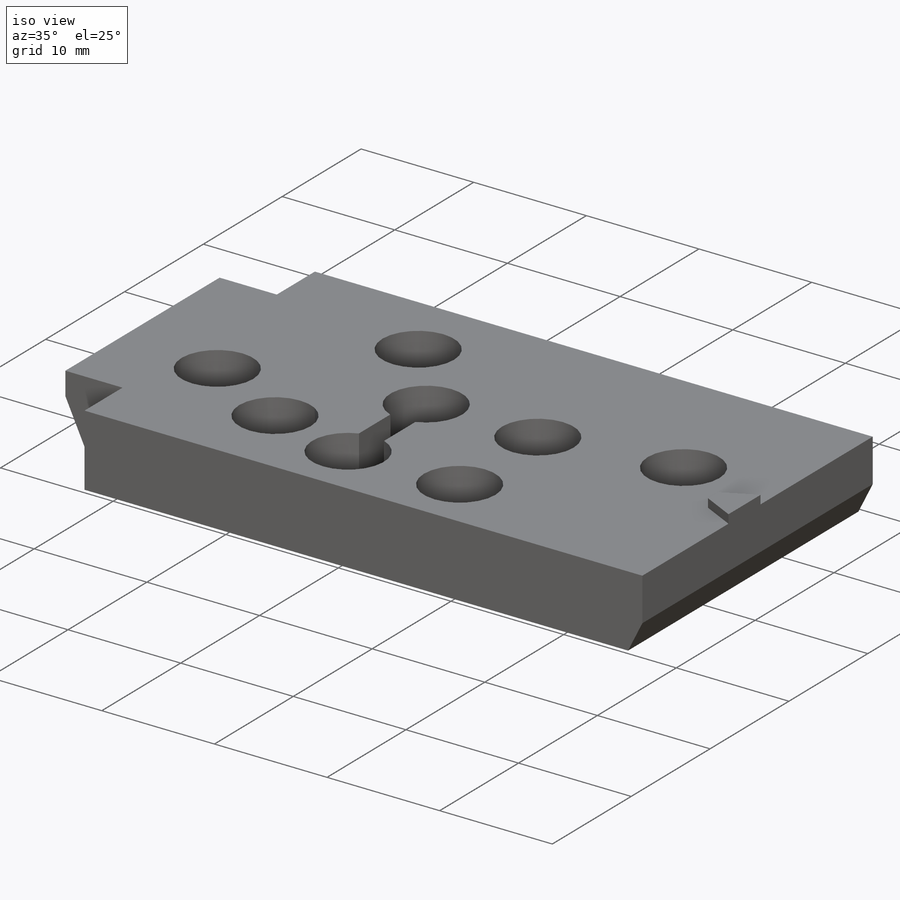
[diagram: iso view]
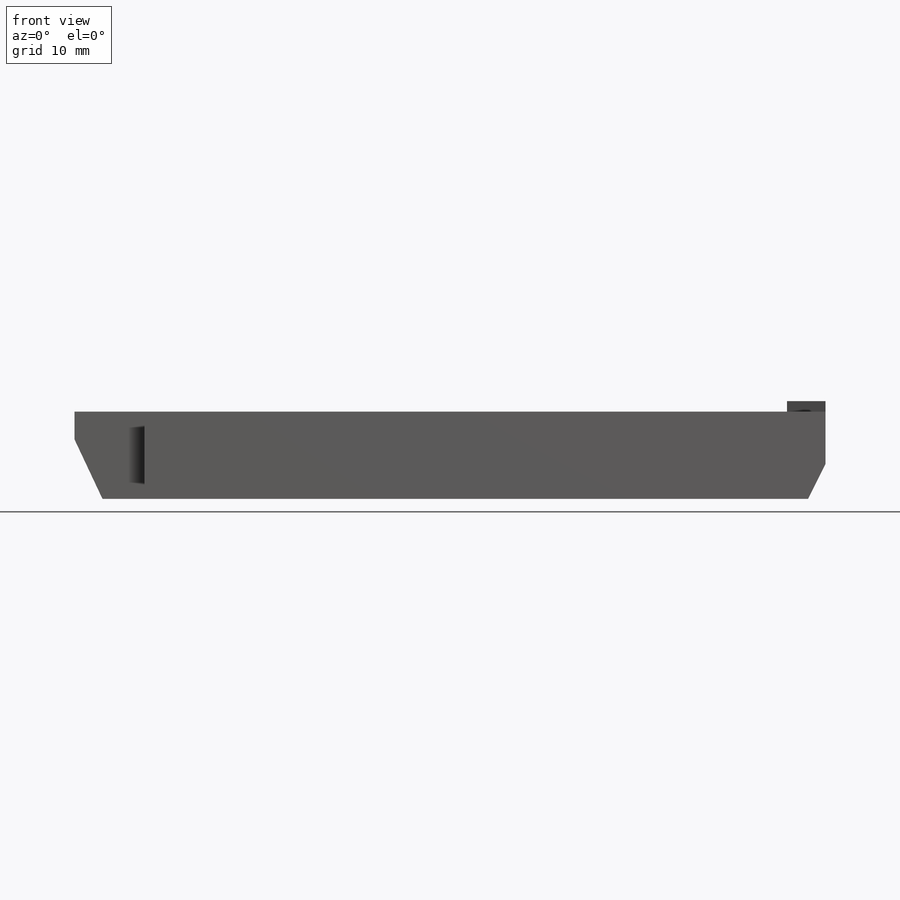
[diagram: front view]
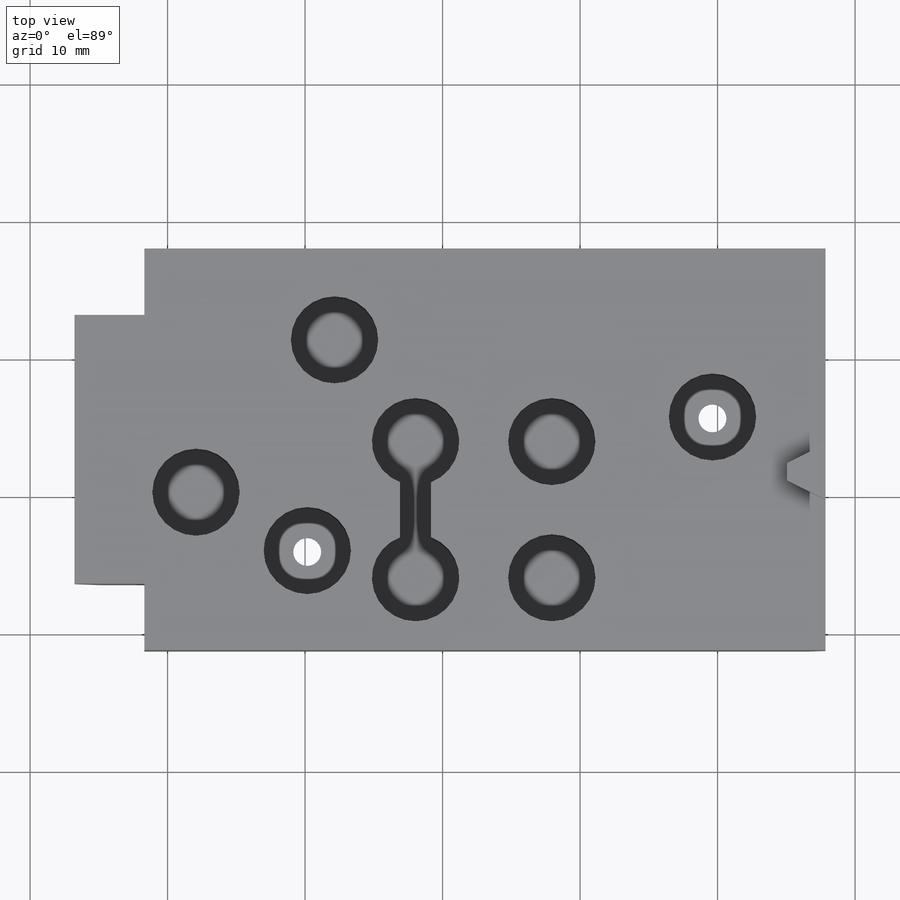
[diagram: top view]
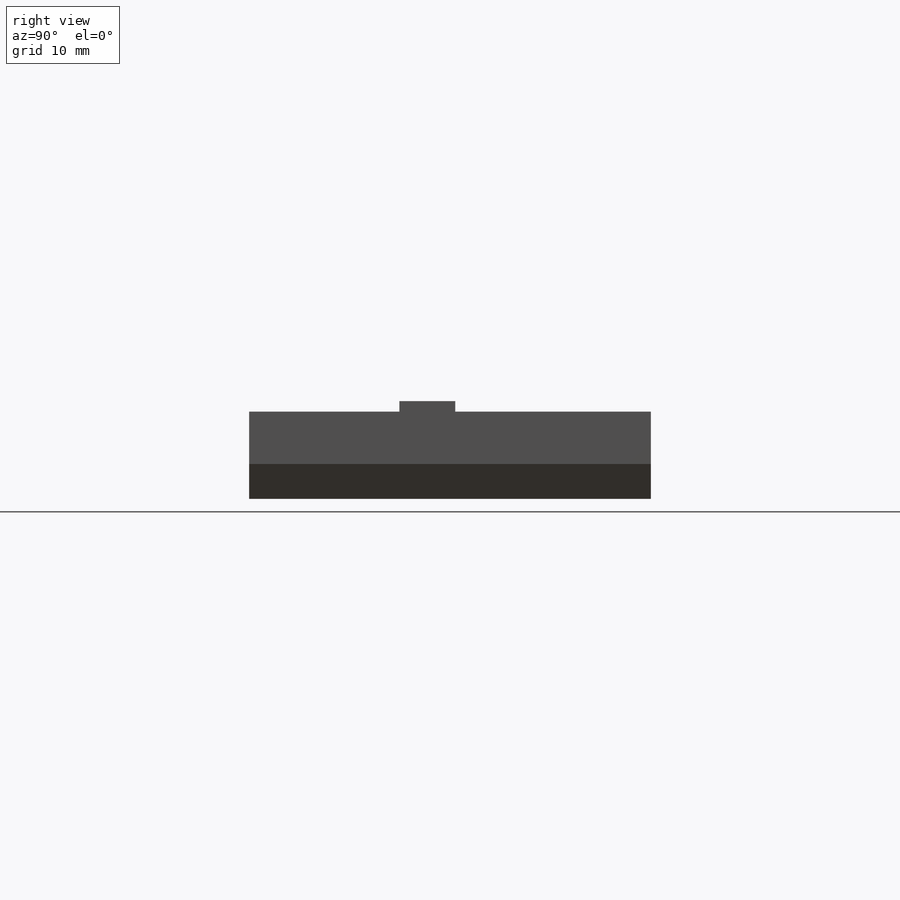
[diagram: right view]
SOLIDWORKS PART (.sldprt)
format: sldprt  version: not decoded by parser v0  size: 11,894,784 bytes
history: native  units: mm
features: sketch x6, cut_extrude x4, extrude x2, material x1 (+13 scaffold rows collapsed)
feature tree (26):
  scaffold x13  (default folders/planes/origin — collapsed)
  material  "Material <not specified>"
  sketch  "Sketch1"  dims[c1.D1=~26.898318mm c1.D2=~50.371878mm c2.D1=~22.985229mm c2.D2=16.256mm c2.D3=29.21mm c2.D4=54.61mm c2.D5=49.53mm c2.D6=19.558mm c2.D7=3.55mm c2.D8=2.794mm c2.D9=1.65mm c3.D8=9.14mm c3.D9=8.12mm c3.D10=1.1176mm c3.D11=1.1176mm]
  extrude  "Boss-Extrude1"  Depth=6.35mm
  sketch  "Sketch2"
  cut_extrude  "Cut-Extrude1"  Depth=5.588mm
  sketch  "Sketch3"  dims[D1=4.064mm D2=2.794mm D3=1.27mm D4=10.922mm]
  extrude  "Boss-Extrude2"  Depth=0.762mm
  sketch  "Sketch4"  dims[D1=2.032mm]
  cut_extrude  "Cut-Extrude2"  [1 undecoded]
  sketch  "Sketch5"  dims[D1=1.27mm D2=2.54mm]
  cut_extrude  "Cut-Extrude3"  [1 undecoded]
  sketch  "Sketch6"  dims[D1=4.318mm D2=2.032mm]
  cut_extrude  "Cut-Extrude4"  [1 undecoded]
decode coverage: 8 of 12 modeling features carry decoded parameters
note: ~ marks probable driven/reference dimensions
note: 3 parameter values undecoded
summary: no parameter record found for 3 features
note: suppression state not decoded; provenance and decode notes live in map.json
